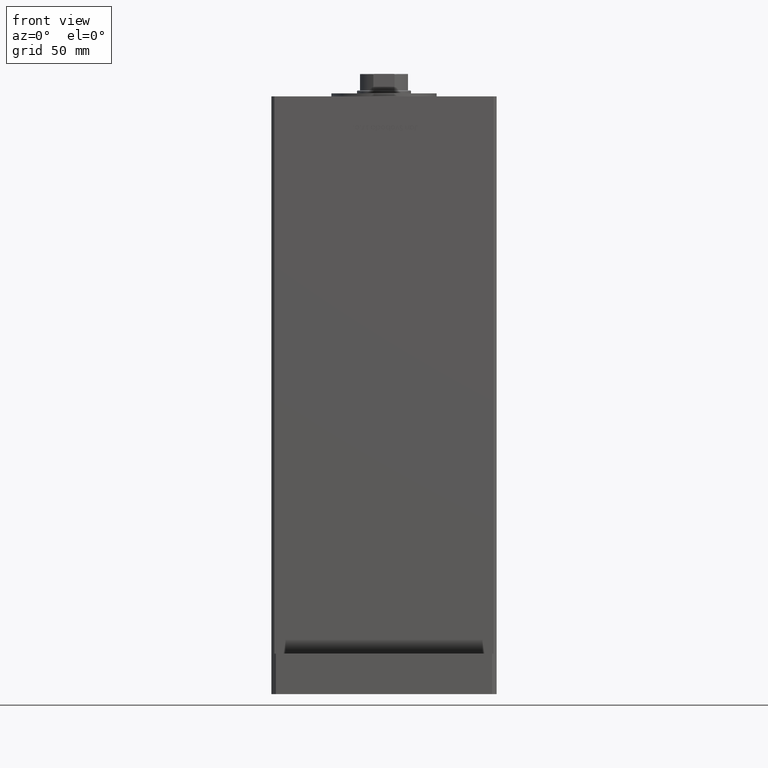
[diagram: clean part render]
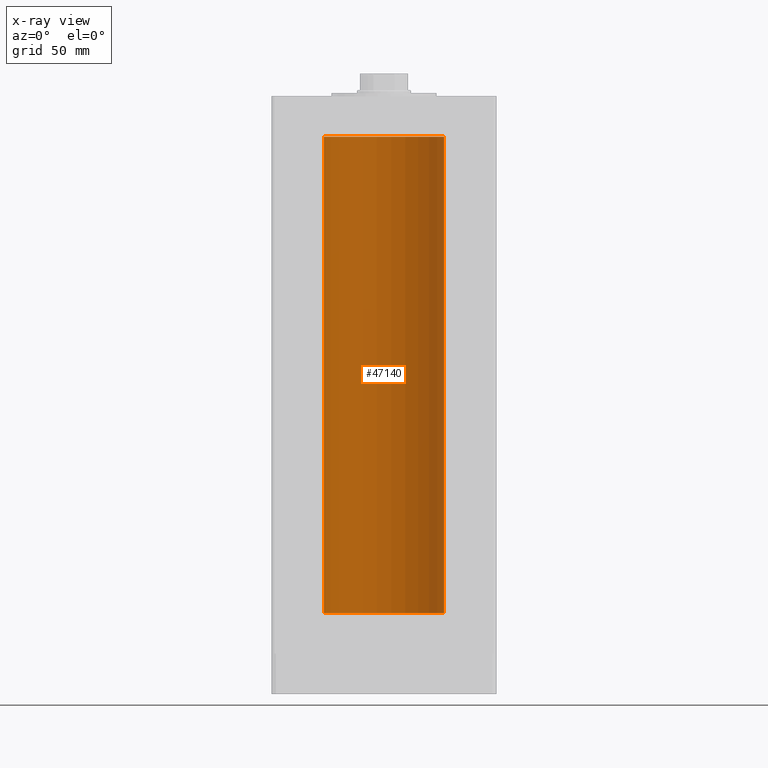
[diagram: x-ray — body ghosted, one internal face saturated and labeled with its STEP entity id]
A machine part, front view, then the same camera in x-ray: the body is ghosted and one INTERNAL B-rep face — a face not visible from any outside direction — is saturated and labeled: STEP entity #47140.
In plain terms, the highlighted cylindrical surface (partial cylindrical patch) has radius 40 mm, axis along (-0, -0, -1).
Its self-contained STEP definition (entity closure, byte-faithful):
#252 = EDGE_CURVE ( 'NONE', #46763, #23718, #36793, .T. ) ;
#644 = ORIENTED_EDGE ( 'NONE', *, *, #19102, .T. ) ;
#1385 = AXIS2_PLACEMENT_3D ( 'NONE', #19635, #1544, #36154 ) ;
#1544 = DIRECTION ( 'NONE',  ( -0.000000000000000000, 0.000000000000000000, 1.000000000000000000 ) ) ;
#4264 = CARTESIAN_POINT ( 'NONE',  ( -40.00000000000000000, 0.000000000000000000, 317.0000000000000000 ) ) ;
#5653 = CARTESIAN_POINT ( 'NONE',  ( 40.00000000000000000, 4.898587196589413026E-15, 317.0000000000000000 ) ) ;
#7887 = CARTESIAN_POINT ( 'NONE',  ( -40.00000000000000000, 0.000000000000000000, 317.0000000000000000 ) ) ;
#8216 = EDGE_LOOP ( 'NONE', ( #13883, #644, #48878, #16924 ) ) ;
#9567 = AXIS2_PLACEMENT_3D ( 'NONE', #25340, #38041, #50561 ) ;
#9959 = FACE_OUTER_BOUND ( 'NONE', #8216, .T. ) ;
#12671 = CIRCLE ( 'NONE', #1385, 40.00000000000000000 ) ;
#13011 = CIRCLE ( 'NONE', #9567, 40.00000000000000000 ) ;
#13528 = DIRECTION ( 'NONE',  ( -0.000000000000000000, -0.000000000000000000, -1.000000000000000000 ) ) ;
#13535 = VECTOR ( 'NONE', #13528, 1000.000000000000000 ) ;
#13883 = ORIENTED_EDGE ( 'NONE', *, *, #24892, .F. ) ;
#16924 = ORIENTED_EDGE ( 'NONE', *, *, #39717, .F. ) ;
#17719 = CARTESIAN_POINT ( 'NONE',  ( 40.00000000000000000, 4.898587196589413026E-15, 0.000000000000000000 ) ) ;
#19102 = EDGE_CURVE ( 'NONE', #25132, #46763, #12671, .T. ) ;
#19635 = CARTESIAN_POINT ( 'NONE',  ( 0.000000000000000000, 0.000000000000000000, 317.0000000000000000 ) ) ;
#21825 = VERTEX_POINT ( 'NONE', #17719 ) ;
#23718 = VERTEX_POINT ( 'NONE', #25277 ) ;
#24892 = EDGE_CURVE ( 'NONE', #25132, #21825, #34926, .T. ) ;
#25132 = VERTEX_POINT ( 'NONE', #37594 ) ;
#25277 = CARTESIAN_POINT ( 'NONE',  ( -40.00000000000000000, 0.000000000000000000, 0.000000000000000000 ) ) ;
#25340 = CARTESIAN_POINT ( 'NONE',  ( 0.000000000000000000, 0.000000000000000000, 0.000000000000000000 ) ) ;
#25712 = CARTESIAN_POINT ( 'NONE',  ( 0.000000000000000000, 0.000000000000000000, 317.0000000000000000 ) ) ;
#26779 = DIRECTION ( 'NONE',  ( -0.000000000000000000, -0.000000000000000000, -1.000000000000000000 ) ) ;
#34926 = LINE ( 'NONE', #5653, #13535 ) ;
#36154 = DIRECTION ( 'NONE',  ( 1.000000000000000000, 0.000000000000000000, 0.000000000000000000 ) ) ;
#36793 = LINE ( 'NONE', #4264, #52954 ) ;
#37336 = DIRECTION ( 'NONE',  ( -0.000000000000000000, -0.000000000000000000, -1.000000000000000000 ) ) ;
#37594 = CARTESIAN_POINT ( 'NONE',  ( 40.00000000000000000, 4.898587196589413026E-15, 317.0000000000000000 ) ) ;
#38041 = DIRECTION ( 'NONE',  ( -0.000000000000000000, 0.000000000000000000, 1.000000000000000000 ) ) ;
#38692 = DIRECTION ( 'NONE',  ( -1.000000000000000000, 0.000000000000000000, 0.000000000000000000 ) ) ;
#39717 = EDGE_CURVE ( 'NONE', #21825, #23718, #13011, .T. ) ;
#46149 = AXIS2_PLACEMENT_3D ( 'NONE', #25712, #26779, #38692 ) ;
#46763 = VERTEX_POINT ( 'NONE', #7887 ) ;
#47140 = ADVANCED_FACE ( 'NONE', ( #9959 ), #50672, .F. ) ;
#48878 = ORIENTED_EDGE ( 'NONE', *, *, #252, .T. ) ;
#50561 = DIRECTION ( 'NONE',  ( 1.000000000000000000, 0.000000000000000000, 0.000000000000000000 ) ) ;
#50672 = CYLINDRICAL_SURFACE ( 'NONE', #46149, 40.00000000000000000 ) ;
#52954 = VECTOR ( 'NONE', #37336, 1000.000000000000000 ) ;